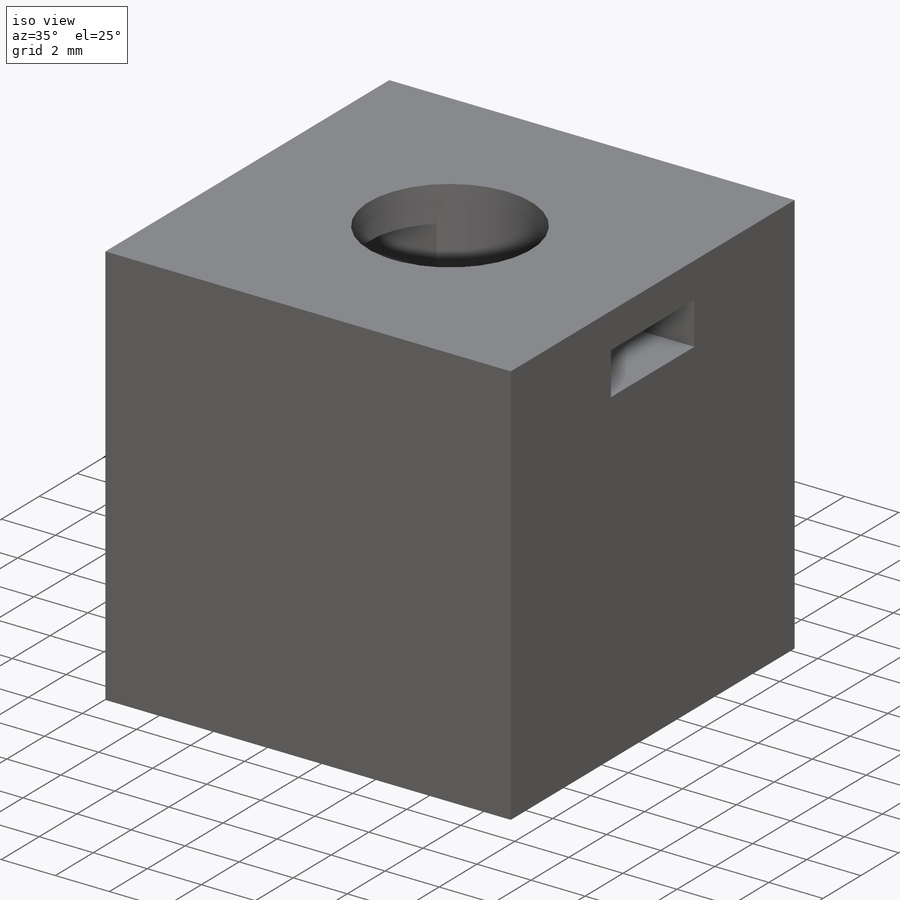
[diagram: iso view]
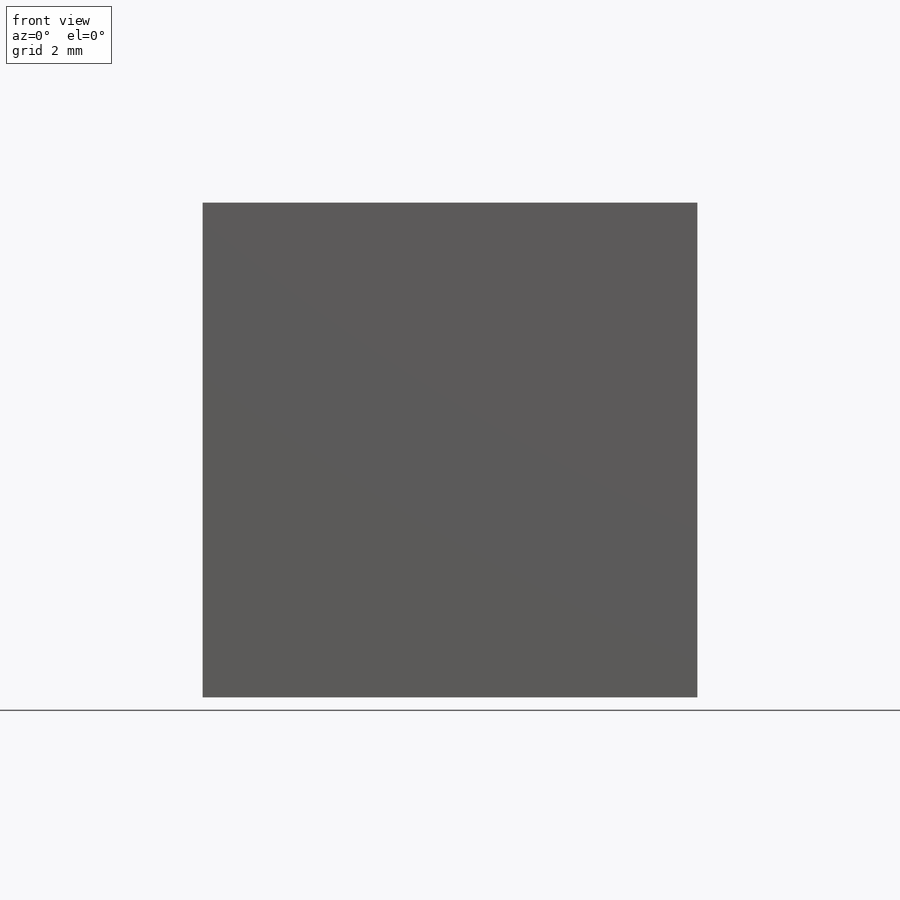
[diagram: front view]
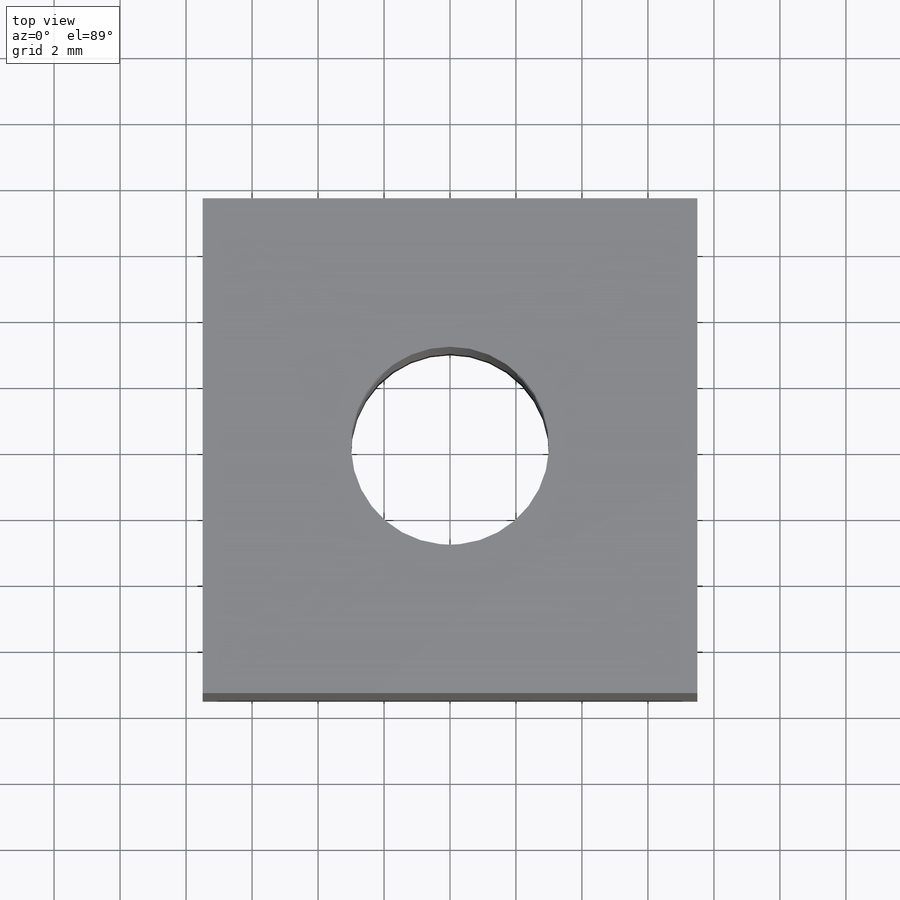
[diagram: top view]
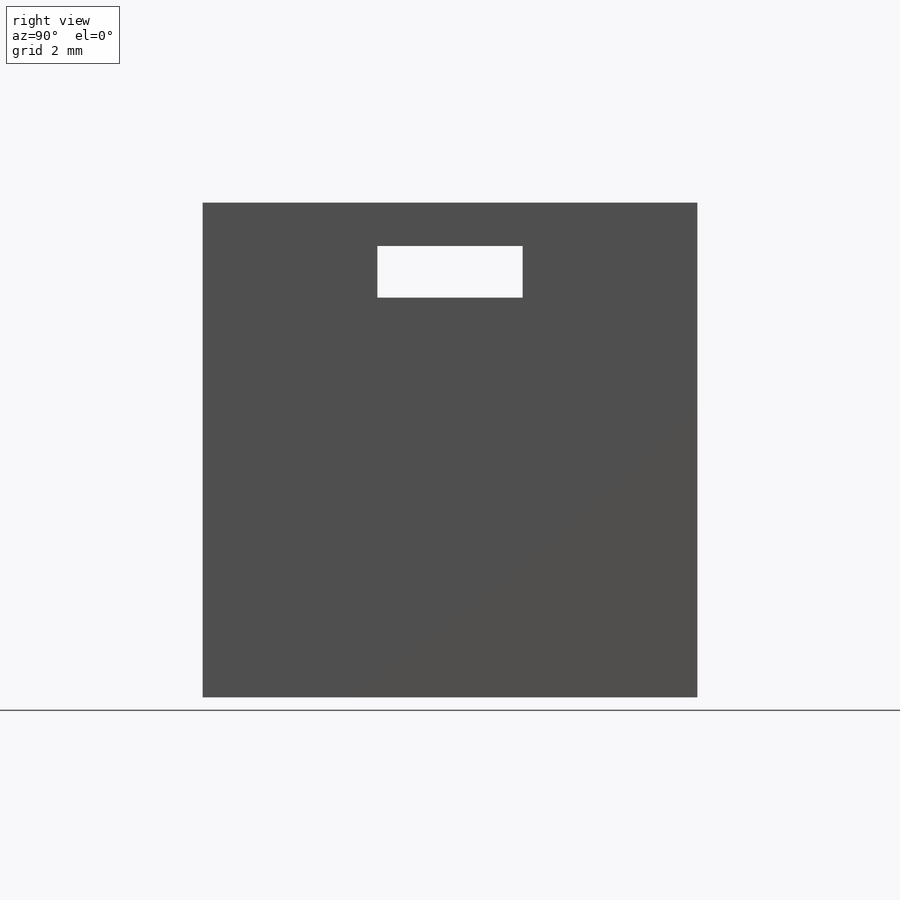
[diagram: right view]
SOLIDWORKS PART (.sldprt)
format: sldprt  version: not decoded by parser v0  size: 132,608 bytes
history: native  units: mm
features: plane x3, sketch x3, cut_extrude x2, material x1, extrude x1 (+13 scaffold rows collapsed)
feature tree (23):
  scaffold x13  (default folders/planes/origin — collapsed)
  material  "Matériau <non spécifié>"
  plane  "Plan de face"
  plane  "Plan de dessus"
  plane  "Plan de droite"
  sketch  "Esquisse1"  dims[D3=6.0mm D1=15.0mm D2=15.0mm]
  extrude  "Boss.-Extru.1"  Depth=15mm
  sketch  "Esquisse2"
  cut_extrude  "Enlèv. mat.-Extru.1"  Depth=15mm
  sketch  "Esquisse3"  dims[D1=3.0mm D2=5.0mm]
  cut_extrude  "Enlèv. mat.-Extru.2"  Depth=10mm
decode coverage: 5 of 6 modeling features carry decoded parameters
note: suppression state not decoded; provenance and decode notes live in map.json
